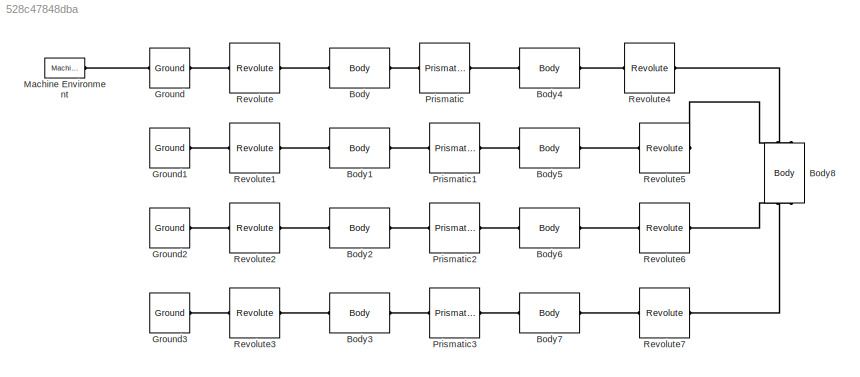
MODEL slx_528c47848dba
KIND model
CONFIG AbsTol = auto
CONFIG FixedStep = auto
CONFIG MaxStep = auto
CONFIG MinStep = auto
CONFIG RelTol = 1e-3
CONFIG SampleTimeConstraint = Unconstrained
CONFIG Solver = ode45
CONFIG SolverMode = Auto
CONFIG SolverName = ode45
CONFIG StartTime = 0.0
CONFIG StopTime = 10.0
BLOCK [Reference] Body  REF=mblibv1/Bodies/Body
  AttachedToCS = CG
  BodyColor = [1;0;0]
  BodyColorSelMode = MACHINE_DEFAULT
  CG = None$CG$[0 0 0]$WORLD$WORLD$m$[0 0 0]$Euler X-Y-Z$deg$INERTIAL$false$none
  CGPos = [0 0 0]
  CGRot = [0 0 0]
  CS0Pos = []
  CS0Rot = []
  CS10Pos = []
  CS10Rot = []
  CS11Pos = []
  CS11Rot = []
  CS12Pos = []
  CS12Rot = []
  CS13Pos = []
  CS13Rot = []
  CS14Pos = []
  CS14Rot = []
  CS15Pos = []
  CS15Rot = []
  CS16Pos = []
  CS16Rot = []
  CS17Pos = []
  CS17Rot = []
  CS18Pos = []
  CS18Rot = []
  CS19Pos = []
  CS19Rot = []
  CS1Pos = [0 0 0]
  CS1Rot = [0 0 0]
  CS20Pos = []
  CS20Rot = []
  CS2Pos = [0 0 0]
  CS2Rot = [0 0 0]
  CS3Pos = []
  CS3Rot = []
  CS4Pos = []
  CS4Rot = []
  CS5Pos = []
  CS5Rot = []
  CS6Pos = []
  CS6Rot = []
  CS7Pos = []
  CS7Rot = []
  CS8Pos = []
  CS8Rot = []
  CS9Pos = []
  CS9Rot = []
  ClassName = Body
  Density = 1
  DensityUnits = kg/m^3
  DensityUse = false
  DialogClass = MechanicalBodyBlock
  GraphicsMode = MACHINE_DEFAULT
  Inertia = eye(3)
  InertiaUnits = kg*m^2
  LConnTagsString = CS1
  Mass = 1
  MassUnits = kg
  Ports = [0, 0, 0, 0, 0, 1, 1]
  RConnTagsString = CS2
  Shape = Cylinder
  ShapeDims = [1 1]
  ShapeUnits = m
  ShapeUse = false
  SourceBlock = mblibv1/Bodies/Body
  SourceType = Body
  UpdateFromCAD = off
  WorkingFrames = Left$CS1$[0 0 0]$CG$CG$m$[0 0 0]$Euler X-Y-Z$deg$WORLD$true$none#Right$CS2$[0 0 0]$CG$CG$m$[0 0 0]$Euler X-Y-Z$deg$WORLD$true$none
BLOCK [Reference] Body1  REF=mblibv1/Bodies/Body
  AttachedToCS = CG
  BodyColor = [1;0;0]
  BodyColorSelMode = MACHINE_DEFAULT
  CG = None$CG$[0 0 0]$WORLD$WORLD$m$[0 0 0]$Euler X-Y-Z$deg$INERTIAL$false$none
  CGPos = [0 0 0]
  CGRot = [0 0 0]
  CS0Pos = []
  CS0Rot = []
  CS10Pos = []
  CS10Rot = []
  CS11Pos = []
  CS11Rot = []
  CS12Pos = []
  CS12Rot = []
  CS13Pos = []
  CS13Rot = []
  CS14Pos = []
  CS14Rot = []
  CS15Pos = []
  CS15Rot = []
  CS16Pos = []
  CS16Rot = []
  CS17Pos = []
  CS17Rot = []
  CS18Pos = []
  CS18Rot = []
  CS19Pos = []
  CS19Rot = []
  CS1Pos = [0 0 0]
  CS1Rot = [0 0 0]
  CS20Pos = []
  CS20Rot = []
  CS2Pos = [0 0 0]
  CS2Rot = [0 0 0]
  CS3Pos = []
  CS3Rot = []
  CS4Pos = []
  CS4Rot = []
  CS5Pos = []
  CS5Rot = []
  CS6Pos = []
  CS6Rot = []
  CS7Pos = []
  CS7Rot = []
  CS8Pos = []
  CS8Rot = []
  CS9Pos = []
  CS9Rot = []
  ClassName = Body
  Density = 1
  DensityUnits = kg/m^3
  DensityUse = false
  DialogClass = MechanicalBodyBlock
  GraphicsMode = MACHINE_DEFAULT
  Inertia = eye(3)
  InertiaUnits = kg*m^2
  LConnTagsString = CS1
  Mass = 1
  MassUnits = kg
  Ports = [0, 0, 0, 0, 0, 1, 1]
  RConnTagsString = CS2
  Shape = Cylinder
  ShapeDims = [1 1]
  ShapeUnits = m
  ShapeUse = false
  SourceBlock = mblibv1/Bodies/Body
  SourceType = Body
  UpdateFromCAD = off
  WorkingFrames = Left$CS1$[0 0 0]$CG$CG$m$[0 0 0]$Euler X-Y-Z$deg$WORLD$true$none#Right$CS2$[0 0 0]$CG$CG$m$[0 0 0]$Euler X-Y-Z$deg$WORLD$true$none
BLOCK [Reference] Body2  REF=mblibv1/Bodies/Body
  AttachedToCS = CG
  BodyColor = [1;0;0]
  BodyColorSelMode = MACHINE_DEFAULT
  CG = None$CG$[0 0 0]$WORLD$WORLD$m$[0 0 0]$Euler X-Y-Z$deg$INERTIAL$false$none
  CGPos = [0 0 0]
  CGRot = [0 0 0]
  CS0Pos = []
  CS0Rot = []
  CS10Pos = []
  CS10Rot = []
  CS11Pos = []
  CS11Rot = []
  CS12Pos = []
  CS12Rot = []
  CS13Pos = []
  CS13Rot = []
  CS14Pos = []
  CS14Rot = []
  CS15Pos = []
  CS15Rot = []
  CS16Pos = []
  CS16Rot = []
  CS17Pos = []
  CS17Rot = []
  CS18Pos = []
  CS18Rot = []
  CS19Pos = []
  CS19Rot = []
  CS1Pos = [0 0 0]
  CS1Rot = [0 0 0]
  CS20Pos = []
  CS20Rot = []
  CS2Pos = [0 0 0]
  CS2Rot = [0 0 0]
  CS3Pos = []
  CS3Rot = []
  CS4Pos = []
  CS4Rot = []
  CS5Pos = []
  CS5Rot = []
  CS6Pos = []
  CS6Rot = []
  CS7Pos = []
  CS7Rot = []
  CS8Pos = []
  CS8Rot = []
  CS9Pos = []
  CS9Rot = []
  ClassName = Body
  Density = 1
  DensityUnits = kg/m^3
  DensityUse = false
  DialogClass = MechanicalBodyBlock
  GraphicsMode = MACHINE_DEFAULT
  Inertia = eye(3)
  InertiaUnits = kg*m^2
  LConnTagsString = CS1
  Mass = 1
  MassUnits = kg
  Ports = [0, 0, 0, 0, 0, 1, 1]
  RConnTagsString = CS2
  Shape = Cylinder
  ShapeDims = [1 1]
  ShapeUnits = m
  ShapeUse = false
  SourceBlock = mblibv1/Bodies/Body
  SourceType = Body
  UpdateFromCAD = off
  WorkingFrames = Left$CS1$[0 0 0]$CG$CG$m$[0 0 0]$Euler X-Y-Z$deg$WORLD$true$none#Right$CS2$[0 0 0]$CG$CG$m$[0 0 0]$Euler X-Y-Z$deg$WORLD$true$none
BLOCK [Reference] Body3  REF=mblibv1/Bodies/Body
  AttachedToCS = CG
  BodyColor = [1;0;0]
  BodyColorSelMode = MACHINE_DEFAULT
  CG = None$CG$[0 0 0]$WORLD$WORLD$m$[0 0 0]$Euler X-Y-Z$deg$INERTIAL$false$none
  CGPos = [0 0 0]
  CGRot = [0 0 0]
  CS0Pos = []
  CS0Rot = []
  CS10Pos = []
  CS10Rot = []
  CS11Pos = []
  CS11Rot = []
  CS12Pos = []
  CS12Rot = []
  CS13Pos = []
  CS13Rot = []
  CS14Pos = []
  CS14Rot = []
  CS15Pos = []
  CS15Rot = []
  CS16Pos = []
  CS16Rot = []
  CS17Pos = []
  CS17Rot = []
  CS18Pos = []
  CS18Rot = []
  CS19Pos = []
  CS19Rot = []
  CS1Pos = [0 0 0]
  CS1Rot = [0 0 0]
  CS20Pos = []
  CS20Rot = []
  CS2Pos = [0 0 0]
  CS2Rot = [0 0 0]
  CS3Pos = []
  CS3Rot = []
  CS4Pos = []
  CS4Rot = []
  CS5Pos = []
  CS5Rot = []
  CS6Pos = []
  CS6Rot = []
  CS7Pos = []
  CS7Rot = []
  CS8Pos = []
  CS8Rot = []
  CS9Pos = []
  CS9Rot = []
  ClassName = Body
  Density = 1
  DensityUnits = kg/m^3
  DensityUse = false
  DialogClass = MechanicalBodyBlock
  GraphicsMode = MACHINE_DEFAULT
  Inertia = eye(3)
  InertiaUnits = kg*m^2
  LConnTagsString = CS1
  Mass = 1
  MassUnits = kg
  Ports = [0, 0, 0, 0, 0, 1, 1]
  RConnTagsString = CS2
  Shape = Cylinder
  ShapeDims = [1 1]
  ShapeUnits = m
  ShapeUse = false
  SourceBlock = mblibv1/Bodies/Body
  SourceType = Body
  UpdateFromCAD = off
  WorkingFrames = Left$CS1$[0 0 0]$CG$CG$m$[0 0 0]$Euler X-Y-Z$deg$WORLD$true$none#Right$CS2$[0 0 0]$CG$CG$m$[0 0 0]$Euler X-Y-Z$deg$WORLD$true$none
BLOCK [Reference] Body4  REF=mblibv1/Bodies/Body
  AttachedToCS = CG
  BodyColor = [1;0;0]
  BodyColorSelMode = MACHINE_DEFAULT
  CG = None$CG$[0 0 0]$WORLD$WORLD$m$[0 0 0]$Euler X-Y-Z$deg$INERTIAL$false$none
  CGPos = [0 0 0]
  CGRot = [0 0 0]
  CS0Pos = []
  CS0Rot = []
  CS10Pos = []
  CS10Rot = []
  CS11Pos = []
  CS11Rot = []
  CS12Pos = []
  CS12Rot = []
  CS13Pos = []
  CS13Rot = []
  CS14Pos = []
  CS14Rot = []
  CS15Pos = []
  CS15Rot = []
  CS16Pos = []
  CS16Rot = []
  CS17Pos = []
  CS17Rot = []
  CS18Pos = []
  CS18Rot = []
  CS19Pos = []
  CS19Rot = []
  CS1Pos = [0 0 0]
  CS1Rot = [0 0 0]
  CS20Pos = []
  CS20Rot = []
  CS2Pos = [0 0 0]
  CS2Rot = [0 0 0]
  CS3Pos = []
  CS3Rot = []
  CS4Pos = []
  CS4Rot = []
  CS5Pos = []
  CS5Rot = []
  CS6Pos = []
  CS6Rot = []
  CS7Pos = []
  CS7Rot = []
  CS8Pos = []
  CS8Rot = []
  CS9Pos = []
  CS9Rot = []
  ClassName = Body
  Density = 1
  DensityUnits = kg/m^3
  DensityUse = false
  DialogClass = MechanicalBodyBlock
  GraphicsMode = MACHINE_DEFAULT
  Inertia = eye(3)
  InertiaUnits = kg*m^2
  LConnTagsString = CS1
  Mass = 1
  MassUnits = kg
  Ports = [0, 0, 0, 0, 0, 1, 1]
  RConnTagsString = CS2
  Shape = Cylinder
  ShapeDims = [1 1]
  ShapeUnits = m
  ShapeUse = false
  SourceBlock = mblibv1/Bodies/Body
  SourceType = Body
  UpdateFromCAD = off
  WorkingFrames = Left$CS1$[0 0 0]$CG$CG$m$[0 0 0]$Euler X-Y-Z$deg$WORLD$true$none#Right$CS2$[0 0 0]$CG$CG$m$[0 0 0]$Euler X-Y-Z$deg$WORLD$true$none
BLOCK [Reference] Body5  REF=mblibv1/Bodies/Body
  AttachedToCS = CG
  BodyColor = [1;0;0]
  BodyColorSelMode = MACHINE_DEFAULT
  CG = None$CG$[0 0 0]$WORLD$WORLD$m$[0 0 0]$Euler X-Y-Z$deg$INERTIAL$false$none
  CGPos = [0 0 0]
  CGRot = [0 0 0]
  CS0Pos = []
  CS0Rot = []
  CS10Pos = []
  CS10Rot = []
  CS11Pos = []
  CS11Rot = []
  CS12Pos = []
  CS12Rot = []
  CS13Pos = []
  CS13Rot = []
  CS14Pos = []
  CS14Rot = []
  CS15Pos = []
  CS15Rot = []
  CS16Pos = []
  CS16Rot = []
  CS17Pos = []
  CS17Rot = []
  CS18Pos = []
  CS18Rot = []
  CS19Pos = []
  CS19Rot = []
  CS1Pos = [0 0 0]
  CS1Rot = [0 0 0]
  CS20Pos = []
  CS20Rot = []
  CS2Pos = [0 0 0]
  CS2Rot = [0 0 0]
  CS3Pos = []
  CS3Rot = []
  CS4Pos = []
  CS4Rot = []
  CS5Pos = []
  CS5Rot = []
  CS6Pos = []
  CS6Rot = []
  CS7Pos = []
  CS7Rot = []
  CS8Pos = []
  CS8Rot = []
  CS9Pos = []
  CS9Rot = []
  ClassName = Body
  Density = 1
  DensityUnits = kg/m^3
  DensityUse = false
  DialogClass = MechanicalBodyBlock
  GraphicsMode = MACHINE_DEFAULT
  Inertia = eye(3)
  InertiaUnits = kg*m^2
  LConnTagsString = CS1
  Mass = 1
  MassUnits = kg
  Ports = [0, 0, 0, 0, 0, 1, 1]
  RConnTagsString = CS2
  Shape = Cylinder
  ShapeDims = [1 1]
  ShapeUnits = m
  ShapeUse = false
  SourceBlock = mblibv1/Bodies/Body
  SourceType = Body
  UpdateFromCAD = off
  WorkingFrames = Left$CS1$[0 0 0]$CG$CG$m$[0 0 0]$Euler X-Y-Z$deg$WORLD$true$none#Right$CS2$[0 0 0]$CG$CG$m$[0 0 0]$Euler X-Y-Z$deg$WORLD$true$none
BLOCK [Reference] Body6  REF=mblibv1/Bodies/Body
  AttachedToCS = CG
  BodyColor = [1;0;0]
  BodyColorSelMode = MACHINE_DEFAULT
  CG = None$CG$[0 0 0]$WORLD$WORLD$m$[0 0 0]$Euler X-Y-Z$deg$INERTIAL$false$none
  CGPos = [0 0 0]
  CGRot = [0 0 0]
  CS0Pos = []
  CS0Rot = []
  CS10Pos = []
  CS10Rot = []
  CS11Pos = []
  CS11Rot = []
  CS12Pos = []
  CS12Rot = []
  CS13Pos = []
  CS13Rot = []
  CS14Pos = []
  CS14Rot = []
  CS15Pos = []
  CS15Rot = []
  CS16Pos = []
  CS16Rot = []
  CS17Pos = []
  CS17Rot = []
  CS18Pos = []
  CS18Rot = []
  CS19Pos = []
  CS19Rot = []
  CS1Pos = [0 0 0]
  CS1Rot = [0 0 0]
  CS20Pos = []
  CS20Rot = []
  CS2Pos = [0 0 0]
  CS2Rot = [0 0 0]
  CS3Pos = []
  CS3Rot = []
  CS4Pos = []
  CS4Rot = []
  CS5Pos = []
  CS5Rot = []
  CS6Pos = []
  CS6Rot = []
  CS7Pos = []
  CS7Rot = []
  CS8Pos = []
  CS8Rot = []
  CS9Pos = []
  CS9Rot = []
  ClassName = Body
  Density = 1
  DensityUnits = kg/m^3
  DensityUse = false
  DialogClass = MechanicalBodyBlock
  GraphicsMode = MACHINE_DEFAULT
  Inertia = eye(3)
  InertiaUnits = kg*m^2
  LConnTagsString = CS1
  Mass = 1
  MassUnits = kg
  Ports = [0, 0, 0, 0, 0, 1, 1]
  RConnTagsString = CS2
  Shape = Cylinder
  ShapeDims = [1 1]
  ShapeUnits = m
  ShapeUse = false
  SourceBlock = mblibv1/Bodies/Body
  SourceType = Body
  UpdateFromCAD = off
  WorkingFrames = Left$CS1$[0 0 0]$CG$CG$m$[0 0 0]$Euler X-Y-Z$deg$WORLD$true$none#Right$CS2$[0 0 0]$CG$CG$m$[0 0 0]$Euler X-Y-Z$deg$WORLD$true$none
BLOCK [Reference] Body7  REF=mblibv1/Bodies/Body
  AttachedToCS = CG
  BodyColor = [1;0;0]
  BodyColorSelMode = MACHINE_DEFAULT
  CG = None$CG$[0 0 0]$WORLD$WORLD$m$[0 0 0]$Euler X-Y-Z$deg$INERTIAL$false$none
  CGPos = [0 0 0]
  CGRot = [0 0 0]
  CS0Pos = []
  CS0Rot = []
  CS10Pos = []
  CS10Rot = []
  CS11Pos = []
  CS11Rot = []
  CS12Pos = []
  CS12Rot = []
  CS13Pos = []
  CS13Rot = []
  CS14Pos = []
  CS14Rot = []
  CS15Pos = []
  CS15Rot = []
  CS16Pos = []
  CS16Rot = []
  CS17Pos = []
  CS17Rot = []
  CS18Pos = []
  CS18Rot = []
  CS19Pos = []
  CS19Rot = []
  CS1Pos = [0 0 0]
  CS1Rot = [0 0 0]
  CS20Pos = []
  CS20Rot = []
  CS2Pos = [0 0 0]
  CS2Rot = [0 0 0]
  CS3Pos = []
  CS3Rot = []
  CS4Pos = []
  CS4Rot = []
  CS5Pos = []
  CS5Rot = []
  CS6Pos = []
  CS6Rot = []
  CS7Pos = []
  CS7Rot = []
  CS8Pos = []
  CS8Rot = []
  CS9Pos = []
  CS9Rot = []
  ClassName = Body
  Density = 1
  DensityUnits = kg/m^3
  DensityUse = false
  DialogClass = MechanicalBodyBlock
  GraphicsMode = MACHINE_DEFAULT
  Inertia = eye(3)
  InertiaUnits = kg*m^2
  LConnTagsString = CS1
  Mass = 1
  MassUnits = kg
  Ports = [0, 0, 0, 0, 0, 1, 1]
  RConnTagsString = CS2
  Shape = Cylinder
  ShapeDims = [1 1]
  ShapeUnits = m
  ShapeUse = false
  SourceBlock = mblibv1/Bodies/Body
  SourceType = Body
  UpdateFromCAD = off
  WorkingFrames = Left$CS1$[0 0 0]$CG$CG$m$[0 0 0]$Euler X-Y-Z$deg$WORLD$true$none#Right$CS2$[0 0 0]$CG$CG$m$[0 0 0]$Euler X-Y-Z$deg$WORLD$true$none
BLOCK [Reference] Body8  REF=mblibv1/Bodies/Body
  AttachedToCS = CG
  BodyColor = [1 0 0]
  BodyColorSelMode = MACHINE_DEFAULT
  CG = Left$CG$[0 0 0]$WORLD$WORLD$m$[0 0 0]$Euler X-Y-Z$deg$WORLD$false$none
  CGPos = [0 0 0]
  CGRot = [0 0 0]
  CS0Pos = []
  CS0Rot = []
  CS10Pos = []
  CS10Rot = []
  CS11Pos = []
  CS11Rot = []
  CS12Pos = []
  CS12Rot = []
  CS13Pos = []
  CS13Rot = []
  CS14Pos = []
  CS14Rot = []
  CS15Pos = []
  CS15Rot = []
  CS16Pos = []
  CS16Rot = []
  CS17Pos = []
  CS17Rot = []
  CS18Pos = []
  CS18Rot = []
  CS19Pos = []
  CS19Rot = []
  CS1Pos = [0 0 0]
  CS1Rot = [0 0 0]
  CS20Pos = []
  CS20Rot = []
  CS2Pos = [0 0 0]
  CS2Rot = [0 0 0]
  CS3Pos = [0 0 0]
  CS3Rot = [0 0 0]
  CS4Pos = [0 0 0]
  CS4Rot = [0 0 0]
  CS5Pos = []
  CS5Rot = []
  CS6Pos = []
  CS6Rot = []
  CS7Pos = []
  CS7Rot = []
  CS8Pos = []
  CS8Rot = []
  CS9Pos = []
  CS9Rot = []
  ClassName = Body
  Density = 1
  DensityUnits = kg/m^3
  DensityUse = false
  DialogClass = MechanicalBodyBlock
  GraphicsMode = MACHINE_DEFAULT
  Inertia = eye(3)
  InertiaUnits = kg*m^2
  LConnTagsString = CS1|CS3
  Mass = 1
  MassUnits = kg
  Ports = [0, 0, 0, 0, 0, 2, 2]
  RConnTagsString = CS2|CS4
  Shape = Cylinder
  ShapeDims = [1 1]
  ShapeUnits = m
  ShapeUse = false
  SourceBlock = mblibv1/Bodies/Body
  SourceType = Body
  UpdateFromCAD = off
  WorkingFrames = Left$CS1$[0 0 0]$CG$CG$m$[0 0 0]$Euler X-Y-Z$deg$WORLD$true$none#Left$CS3$[0 0 0]$CG$CG$m$[0 0 0]$Euler X-Y-Z$deg$WORLD$true$none#Right$CS2$[0 0 0]$CG$CG$m$[0 0 0]$Euler X-Y-Z$deg$WORLD$true$none#Right$CS4$[0 0 0]$CG$CG$m$[0 0 0]$Euler X-Y-Z$deg$WORLD$true$none
BLOCK [Reference] Ground  REF=mblibv1/Bodies/Ground
  ClassName = Ground
  CoordPosition = [0.55/2 0.17 0]
  CoordPositionUnits = m
  DialogClass = GroundBlock
  LeftPortType = env
  MachineId = [0 0]
  ParameterChecksum = [0 0 0 0]
  PhysicalDomain = Mechanical
  Ports = [0, 0, 0, 0, 0, 1, 1]
  RightPortType = workingframe
  ShowEnvPort = on
  SourceBlock = mblibv1/Bodies/Ground
  SourceType = Ground
  StateVectorMgrId = -1
  TopologyChecksum = [0 0 0 0]
  UpdateFromCAD = off
  UserDataPersistent = on
BLOCK [Reference] Ground1  REF=mblibv1/Bodies/Ground
  ClassName = Ground
  CoordPosition = [-0.55/2 0.17 0]
  CoordPositionUnits = m
  DialogClass = GroundBlock
  LeftPortType = env
  MachineId = [0 0]
  ParameterChecksum = [0 0 0 0]
  PhysicalDomain = Mechanical
  Ports = [0, 0, 0, 0, 0, 0, 1]
  RightPortType = workingframe
  ShowEnvPort = off
  SourceBlock = mblibv1/Bodies/Ground
  SourceType = Ground
  StateVectorMgrId = -1
  TopologyChecksum = [0 0 0 0]
  UpdateFromCAD = off
  UserDataPersistent = on
BLOCK [Reference] Ground2  REF=mblibv1/Bodies/Ground
  ClassName = Ground
  CoordPosition = [-0.45/2 0 0]
  CoordPositionUnits = m
  DialogClass = GroundBlock
  LeftPortType = env
  MachineId = [0 0]
  ParameterChecksum = [0 0 0 0]
  PhysicalDomain = Mechanical
  Ports = [0, 0, 0, 0, 0, 0, 1]
  RightPortType = workingframe
  ShowEnvPort = off
  SourceBlock = mblibv1/Bodies/Ground
  SourceType = Ground
  StateVectorMgrId = -1
  TopologyChecksum = [0 0 0 0]
  UpdateFromCAD = off
  UserDataPersistent = on
BLOCK [Reference] Ground3  REF=mblibv1/Bodies/Ground
  ClassName = Ground
  CoordPosition = [0.45/2 0 0]
  CoordPositionUnits = m
  DialogClass = GroundBlock
  LeftPortType = env
  MachineId = [0 0]
  ParameterChecksum = [0 0 0 0]
  PhysicalDomain = Mechanical
  Ports = [0, 0, 0, 0, 0, 0, 1]
  RightPortType = workingframe
  ShowEnvPort = off
  SourceBlock = mblibv1/Bodies/Ground
  SourceType = Ground
  StateVectorMgrId = -1
  TopologyChecksum = [0 0 0 0]
  UpdateFromCAD = off
  UserDataPersistent = on
BLOCK [Reference] Machine Environment  REF=mblibv1/Bodies/Machine
Environment
  AnalysisType = Forward dynamics
  AngularAssemblyTolerance = 1e-3
  AngularAssemblyToleranceUnits = rad
  BodyColorSelMode = Use model default
  BodyVisualizationType = Use model default body geometries
  ClassName = Environment
  ConstraintAbsTolerance = 1e-4
  ConstraintRelTolerance = 1e-4
  ConstraintSolverType = Stabilizing
  DefaultBodyColor = [1 0 0]
  DialogTemplateClass = MECH.MachineEnvironment
  Dimensionality = Auto-detect
  Gravity = [0 -9.81 0]
  GravityAsSignal = off
  GravityUnits = m/s^2
  LinearAssemblyTolerance = 1e-3
  LinearAssemblyToleranceUnits = m
  PerturbationSize = 1e-5
  PhysicalDomain = Mechanical
  PortType = env
  Ports = [0, 0, 0, 0, 0, 0, 1]
  RedundancyAnalysisTolerance = 1e-14
  RedundancyAnalysisToleranceType = Automatically select tolerance
  SourceBlock = mblibv1/Bodies/Machine\nEnvironment
  SourceType = Machine Environment
  StatePerturbationType = Fixed
  SyncWhenCopied = off
  UseRobustSingularityHandling = off
  VisualizeMachine = on
BLOCK [Reference] Prismatic  REF=mblibv1/Joints/Prismatic
  ClassName = Joint
  CutJoint = off
  DialogClass = JointBlock
  LConnTagsString = __newl0
  MarkAsCut = off
  NumSAPorts = 0
  P1Axis = [0 0 1]
  Ports = [0, 0, 0, 0, 0, 1, 1]
  PrimitiveProps = P1$WORLD$[0 0 1]$prismatic
  Primitives = prismatic
  RConnTagsString = __newr0
  SourceBlock = mblibv1/Joints/Prismatic
  SourceType = Prismatic
  UpdateFromCAD = off
BLOCK [Reference] Prismatic1  REF=mblibv1/Joints/Prismatic
  ClassName = Joint
  CutJoint = off
  DialogClass = JointBlock
  LConnTagsString = __newl0
  MarkAsCut = off
  NumSAPorts = 0
  P1Axis = [0 0 1]
  Ports = [0, 0, 0, 0, 0, 1, 1]
  PrimitiveProps = P1$WORLD$[0 0 1]$prismatic
  Primitives = prismatic
  RConnTagsString = __newr0
  SourceBlock = mblibv1/Joints/Prismatic
  SourceType = Prismatic
  UpdateFromCAD = off
BLOCK [Reference] Prismatic2  REF=mblibv1/Joints/Prismatic
  ClassName = Joint
  CutJoint = off
  DialogClass = JointBlock
  LConnTagsString = __newl0
  MarkAsCut = off
  NumSAPorts = 0
  P1Axis = [0 0 1]
  Ports = [0, 0, 0, 0, 0, 1, 1]
  PrimitiveProps = P1$WORLD$[0 0 1]$prismatic
  Primitives = prismatic
  RConnTagsString = __newr0
  SourceBlock = mblibv1/Joints/Prismatic
  SourceType = Prismatic
  UpdateFromCAD = off
BLOCK [Reference] Prismatic3  REF=mblibv1/Joints/Prismatic
  ClassName = Joint
  CutJoint = off
  DialogClass = JointBlock
  LConnTagsString = __newl0
  MarkAsCut = off
  NumSAPorts = 0
  P1Axis = [0 0 1]
  Ports = [0, 0, 0, 0, 0, 1, 1]
  PrimitiveProps = P1$WORLD$[0 0 1]$prismatic
  Primitives = prismatic
  RConnTagsString = __newr0
  SourceBlock = mblibv1/Joints/Prismatic
  SourceType = Prismatic
  UpdateFromCAD = off
BLOCK [Reference] Revolute  REF=mblibv1/Joints/Revolute
  ClassName = Joint
  CutJoint = off
  DialogClass = JointBlock
  LConnTagsString = __newl0
  MarkAsCut = off
  NumSAPorts = 0
  Ports = [0, 0, 0, 0, 0, 1, 1]
  PrimitiveProps = R1$WORLD$[0 0 1]$revolute
  Primitives = prismatic
  R1Axis = [0 0 1]
  RConnTagsString = __newr0
  SourceBlock = mblibv1/Joints/Revolute
  SourceType = Revolute
  UpdateFromCAD = off
BLOCK [Reference] Revolute1  REF=mblibv1/Joints/Revolute
  ClassName = Joint
  CutJoint = off
  DialogClass = JointBlock
  LConnTagsString = __newl0
  MarkAsCut = off
  NumSAPorts = 0
  Ports = [0, 0, 0, 0, 0, 1, 1]
  PrimitiveProps = R1$WORLD$[0 0 1]$revolute
  Primitives = prismatic
  R1Axis = [0 0 1]
  RConnTagsString = __newr0
  SourceBlock = mblibv1/Joints/Revolute
  SourceType = Revolute
  UpdateFromCAD = off
BLOCK [Reference] Revolute2  REF=mblibv1/Joints/Revolute
  ClassName = Joint
  CutJoint = off
  DialogClass = JointBlock
  LConnTagsString = __newl0
  MarkAsCut = off
  NumSAPorts = 0
  Ports = [0, 0, 0, 0, 0, 1, 1]
  PrimitiveProps = R1$WORLD$[0 0 1]$revolute
  Primitives = prismatic
  R1Axis = [0 0 1]
  RConnTagsString = __newr0
  SourceBlock = mblibv1/Joints/Revolute
  SourceType = Revolute
  UpdateFromCAD = off
BLOCK [Reference] Revolute3  REF=mblibv1/Joints/Revolute
  ClassName = Joint
  CutJoint = off
  DialogClass = JointBlock
  LConnTagsString = __newl0
  MarkAsCut = off
  NumSAPorts = 0
  Ports = [0, 0, 0, 0, 0, 1, 1]
  PrimitiveProps = R1$WORLD$[0 0 1]$revolute
  Primitives = prismatic
  R1Axis = [0 0 1]
  RConnTagsString = __newr0
  SourceBlock = mblibv1/Joints/Revolute
  SourceType = Revolute
  UpdateFromCAD = off
BLOCK [Reference] Revolute4  REF=mblibv1/Joints/Revolute
  ClassName = Joint
  CutJoint = off
  DialogClass = JointBlock
  LConnTagsString = __newl0
  MarkAsCut = off
  NumSAPorts = 0
  Ports = [0, 0, 0, 0, 0, 1, 1]
  PrimitiveProps = R1$WORLD$[0 0 1]$revolute
  Primitives = prismatic
  R1Axis = [0 0 1]
  RConnTagsString = __newr0
  SourceBlock = mblibv1/Joints/Revolute
  SourceType = Revolute
  UpdateFromCAD = off
BLOCK [Reference] Revolute5  REF=mblibv1/Joints/Revolute
  ClassName = Joint
  CutJoint = off
  DialogClass = JointBlock
  LConnTagsString = __newl0
  MarkAsCut = off
  NumSAPorts = 0
  Ports = [0, 0, 0, 0, 0, 1, 1]
  PrimitiveProps = R1$WORLD$[0 0 1]$revolute
  Primitives = prismatic
  R1Axis = [0 0 1]
  RConnTagsString = __newr0
  SourceBlock = mblibv1/Joints/Revolute
  SourceType = Revolute
  UpdateFromCAD = off
BLOCK [Reference] Revolute6  REF=mblibv1/Joints/Revolute
  ClassName = Joint
  CutJoint = off
  DialogClass = JointBlock
  LConnTagsString = __newl0
  MarkAsCut = off
  NumSAPorts = 0
  Ports = [0, 0, 0, 0, 0, 1, 1]
  PrimitiveProps = R1$WORLD$[0 0 1]$revolute
  Primitives = prismatic
  R1Axis = [0 0 1]
  RConnTagsString = __newr0
  SourceBlock = mblibv1/Joints/Revolute
  SourceType = Revolute
  UpdateFromCAD = off
BLOCK [Reference] Revolute7  REF=mblibv1/Joints/Revolute
  ClassName = Joint
  CutJoint = off
  DialogClass = JointBlock
  LConnTagsString = __newl0
  MarkAsCut = off
  NumSAPorts = 0
  Ports = [0, 0, 0, 0, 0, 1, 1]
  PrimitiveProps = R1$WORLD$[0 0 1]$revolute
  Primitives = prismatic
  R1Axis = [0 0 1]
  RConnTagsString = __newr0
  SourceBlock = mblibv1/Joints/Revolute
  SourceType = Revolute
  UpdateFromCAD = off
PLINE Body1:LConn1 -- Revolute1:RConn1
PLINE Body1:RConn1 -- Prismatic1:LConn1
PLINE Body2:LConn1 -- Revolute2:RConn1
PLINE Body2:RConn1 -- Prismatic2:LConn1
PLINE Body3:LConn1 -- Revolute3:RConn1
PLINE Body3:RConn1 -- Prismatic3:LConn1
PLINE Body4:LConn1 -- Prismatic:RConn1
PLINE Body4:RConn1 -- Revolute4:LConn1
PLINE Body5:LConn1 -- Prismatic1:RConn1
PLINE Body5:RConn1 -- Revolute5:LConn1
PLINE Body6:LConn1 -- Prismatic2:RConn1
PLINE Body6:RConn1 -- Revolute6:LConn1
PLINE Body7:LConn1 -- Prismatic3:RConn1
PLINE Body7:RConn1 -- Revolute7:LConn1
PLINE Body8:LConn1 -- Revolute5:RConn1
PLINE Body8:LConn2 -- Revolute4:RConn1
PLINE Body8:RConn1 -- Revolute6:RConn1
PLINE Body8:RConn2 -- Revolute7:RConn1
PLINE Body:LConn1 -- Revolute:RConn1
PLINE Body:RConn1 -- Prismatic:LConn1
PLINE Ground1:RConn1 -- Revolute1:LConn1
PLINE Ground2:RConn1 -- Revolute2:LConn1
PLINE Ground3:RConn1 -- Revolute3:LConn1
PLINE Ground:LConn1 -- Machine Environment:RConn1
PLINE Ground:RConn1 -- Revolute:LConn1
